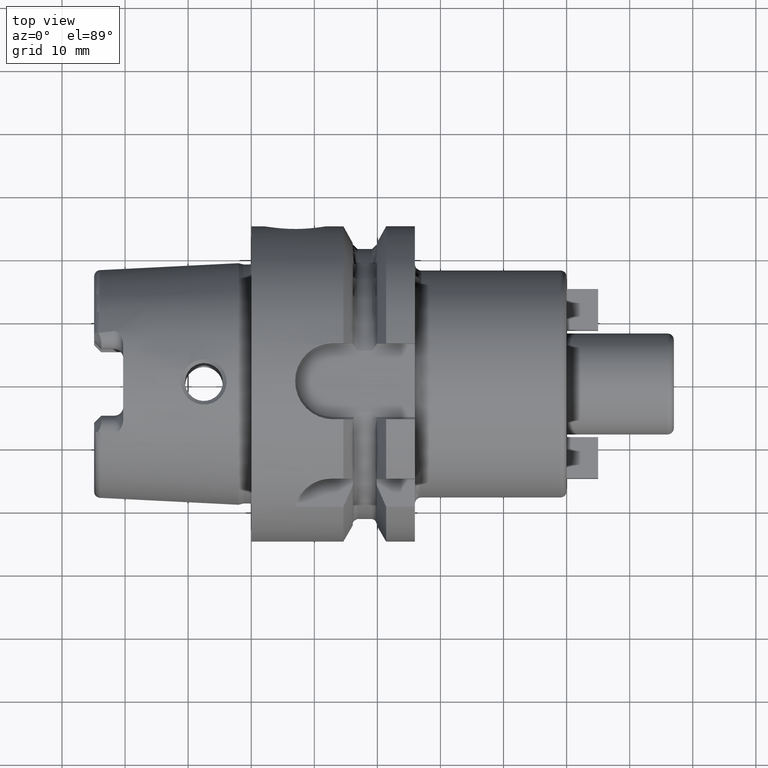
[diagram: clean part render]
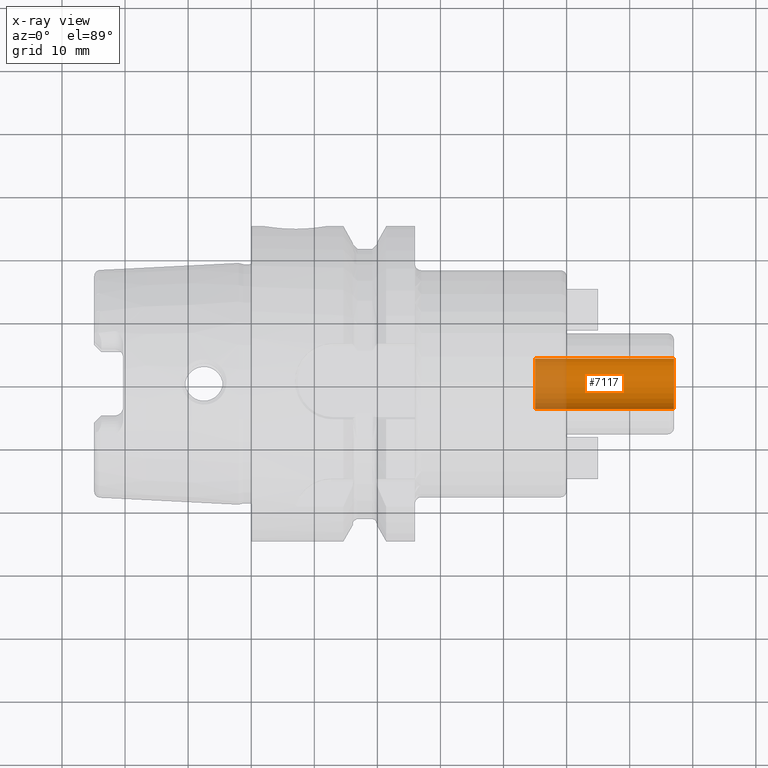
[diagram: x-ray — body ghosted, one internal face saturated and labeled with its STEP entity id]
A machine part, top view, then the same camera in x-ray: the body is ghosted and one INTERNAL B-rep face — a face not visible from any outside direction — is saturated and labeled: STEP entity #7117.
In plain terms, the highlighted cylindrical surface (edge-blend (fillet) strip) has radius 4 mm, axis along (1, 0, 0).
Its self-contained STEP definition (entity closure, byte-faithful):
#7052=CARTESIAN_POINT('',(6.7E1,0.E0,0.E0));
#7053=DIRECTION('',(-1.E0,0.E0,0.E0));
#7054=DIRECTION('',(0.E0,1.E0,0.E0));
#7055=AXIS2_PLACEMENT_3D('',#7052,#7053,#7054);
#7062=DIRECTION('',(-1.E0,0.E0,0.E0));
#7063=VECTOR('',#7062,2.2E1);
#7064=CARTESIAN_POINT('',(6.7E1,4.E0,0.E0));
#7065=LINE('',#7064,#7063);
#7066=DIRECTION('',(-1.E0,0.E0,0.E0));
#7067=VECTOR('',#7066,2.2E1);
#7068=CARTESIAN_POINT('',(6.7E1,-4.E0,0.E0));
#7069=LINE('',#7068,#7067);
#7070=CARTESIAN_POINT('',(4.5E1,0.E0,0.E0));
#7071=DIRECTION('',(1.E0,0.E0,0.E0));
#7072=DIRECTION('',(0.E0,-1.E0,0.E0));
#7073=AXIS2_PLACEMENT_3D('',#7070,#7071,#7072);
#7090=CARTESIAN_POINT('',(4.5E1,-4.E0,0.E0));
#7091=CARTESIAN_POINT('',(4.5E1,4.E0,0.E0));
#7092=VERTEX_POINT('',#7090);
#7093=VERTEX_POINT('',#7091);
#7094=CARTESIAN_POINT('',(6.7E1,-4.E0,0.E0));
#7095=CARTESIAN_POINT('',(6.7E1,4.E0,0.E0));
#7096=VERTEX_POINT('',#7094);
#7097=VERTEX_POINT('',#7095);
#7102=CARTESIAN_POINT('',(3.335492759007E1,0.E0,0.E0));
#7103=DIRECTION('',(1.E0,0.E0,0.E0));
#7104=DIRECTION('',(0.E0,-1.E0,0.E0));
#7105=AXIS2_PLACEMENT_3D('',#7102,#7103,#7104);
#7106=CYLINDRICAL_SURFACE('',#7105,4.E0);
#7108=ORIENTED_EDGE('',*,*,#7107,.T.);
#7110=ORIENTED_EDGE('',*,*,#7109,.T.);
#7112=ORIENTED_EDGE('',*,*,#7111,.T.);
#7114=ORIENTED_EDGE('',*,*,#7113,.F.);
#7115=EDGE_LOOP('',(#7108,#7110,#7112,#7114));
#7116=FACE_OUTER_BOUND('',#7115,.F.);
#7117=ADVANCED_FACE('',(#7116),#7106,.F.);
#7056=CIRCLE('',#7055,4.E0);
#7074=CIRCLE('',#7073,4.E0);
#7107=EDGE_CURVE('',#7097,#7096,#7056,.T.);
#7109=EDGE_CURVE('',#7096,#7092,#7069,.T.);
#7111=EDGE_CURVE('',#7092,#7093,#7074,.T.);
#7113=EDGE_CURVE('',#7097,#7093,#7065,.T.);